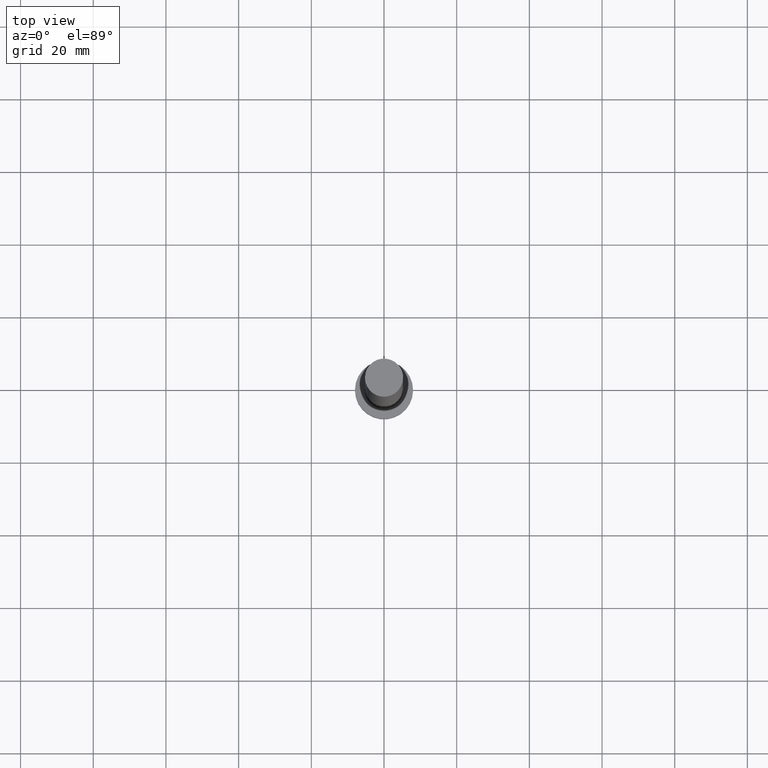
[diagram: clean part render]
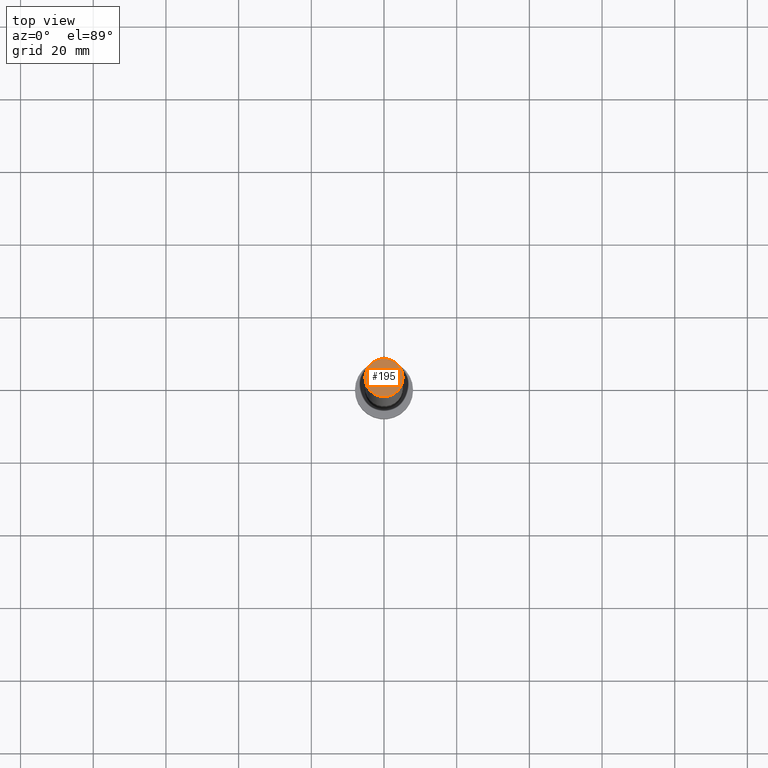
[diagram: same view with one face highlighted and labeled with its STEP entity id]
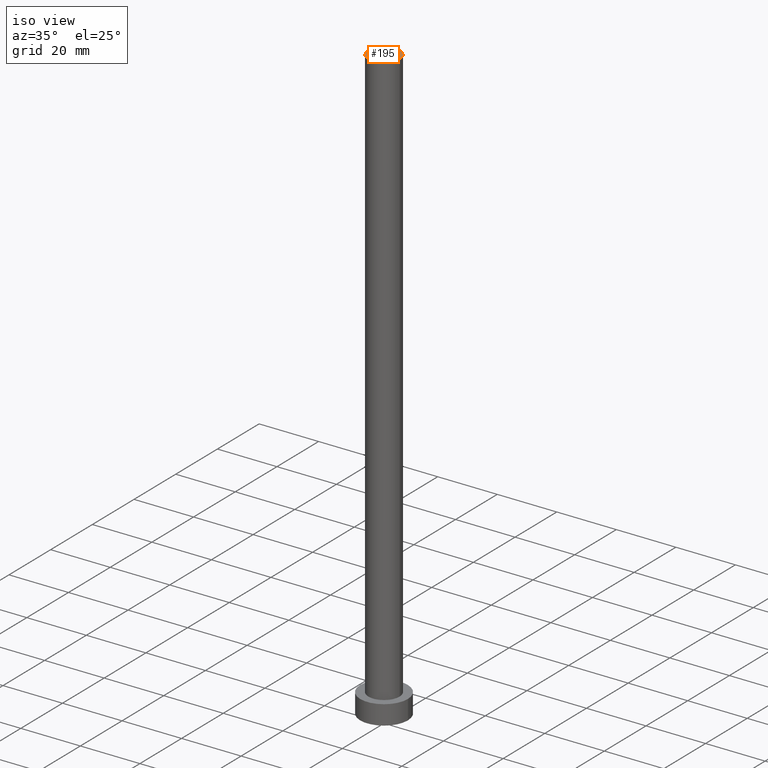
[diagram: same view with one face highlighted and labeled with its STEP entity id]
A machine part, top view. The second image highlights one B-rep face of the part: STEP entity #195.
A second angle (iso view) of the same face is appended — the face is thin or edge-on in the first view.
In plain terms, the highlighted planar face has unit normal (0, 0, 1).
Its self-contained STEP definition (entity closure, byte-faithful):
#32 = DIRECTION ( 'NONE',  ( 1.000000000000000000, 0.000000000000000000, -0.000000000000000000 ) ) ;
#34 = CARTESIAN_POINT ( 'NONE',  ( 0.000000000000000000, 0.000000000000000000, 200.0000000000000000 ) ) ;
#37 = CARTESIAN_POINT ( 'NONE',  ( 0.000000000000000000, 0.000000000000000000, 200.0000000000000000 ) ) ;
#45 = AXIS2_PLACEMENT_3D ( 'NONE', #34, #98, #100 ) ;
#61 = ORIENTED_EDGE ( 'NONE', *, *, #219, .T. ) ;
#77 = FACE_OUTER_BOUND ( 'NONE', #161, .T. ) ;
#79 = CARTESIAN_POINT ( 'NONE',  ( 0.000000000000000000, 0.000000000000000000, 200.0000000000000000 ) ) ;
#98 = DIRECTION ( 'NONE',  ( 0.000000000000000000, 0.000000000000000000, 1.000000000000000000 ) ) ;
#99 = VERTEX_POINT ( 'NONE', #231 ) ;
#100 = DIRECTION ( 'NONE',  ( 1.000000000000000000, 0.000000000000000000, 0.000000000000000000 ) ) ;
#106 = CIRCLE ( 'NONE', #45, 5.250000000000000888 ) ;
#112 = DIRECTION ( 'NONE',  ( 0.000000000000000000, 0.000000000000000000, 1.000000000000000000 ) ) ;
#117 = EDGE_CURVE ( 'NONE', #209, #99, #147, .T. ) ;
#134 = DIRECTION ( 'NONE',  ( 1.000000000000000000, 0.000000000000000000, 0.000000000000000000 ) ) ;
#143 = PLANE ( 'NONE',  #247 ) ;
#147 = CIRCLE ( 'NONE', #148, 5.250000000000000888 ) ;
#148 = AXIS2_PLACEMENT_3D ( 'NONE', #37, #112, #134 ) ;
#161 = EDGE_LOOP ( 'NONE', ( #230, #61 ) ) ;
#163 = DIRECTION ( 'NONE',  ( 0.000000000000000000, 0.000000000000000000, 1.000000000000000000 ) ) ;
#195 = ADVANCED_FACE ( 'NONE', ( #77 ), #143, .T. ) ;
#205 = CARTESIAN_POINT ( 'NONE',  ( -5.250000000000000888, 0.000000000000000000, 200.0000000000000000 ) ) ;
#209 = VERTEX_POINT ( 'NONE', #205 ) ;
#219 = EDGE_CURVE ( 'NONE', #99, #209, #106, .T. ) ;
#230 = ORIENTED_EDGE ( 'NONE', *, *, #117, .T. ) ;
#231 = CARTESIAN_POINT ( 'NONE',  ( 5.250000000000000888, 6.429395695523605139E-16, 200.0000000000000000 ) ) ;
#247 = AXIS2_PLACEMENT_3D ( 'NONE', #79, #163, #32 ) ;